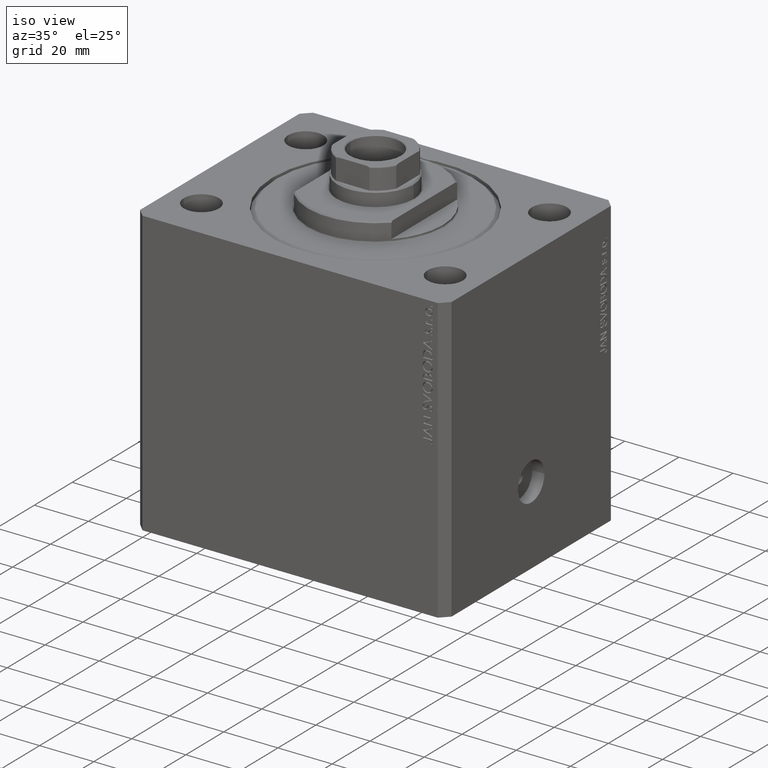
[diagram: clean part render]
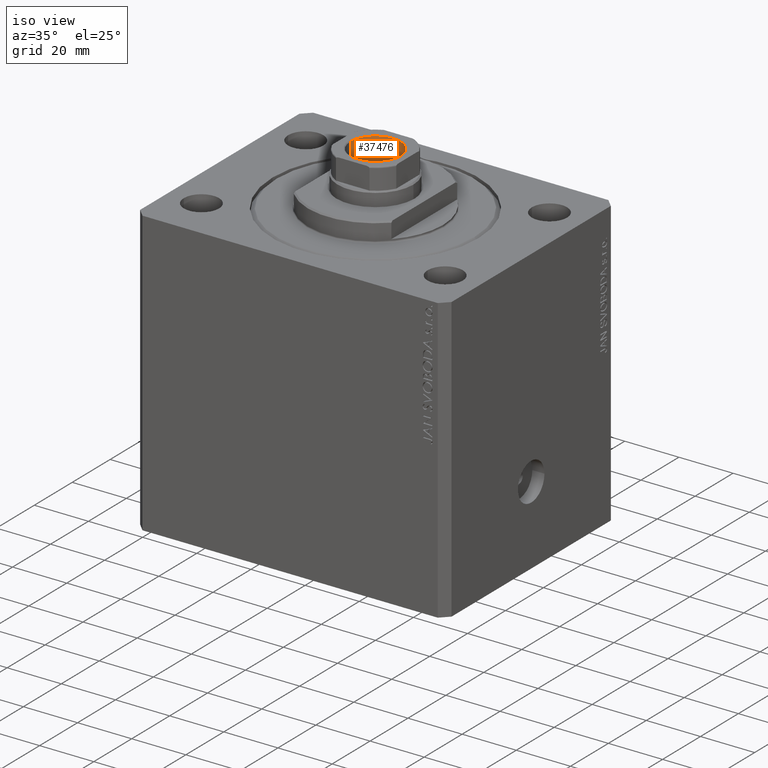
[diagram: same view with one face highlighted and labeled with its STEP entity id]
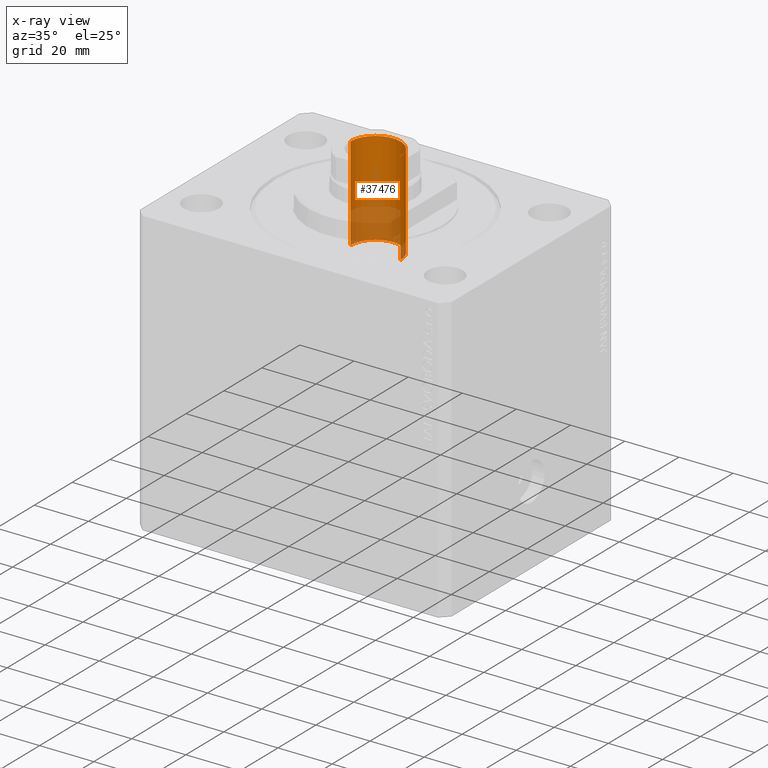
[diagram: x-ray of the same camera — body ghosted, the highlighted face saturated]
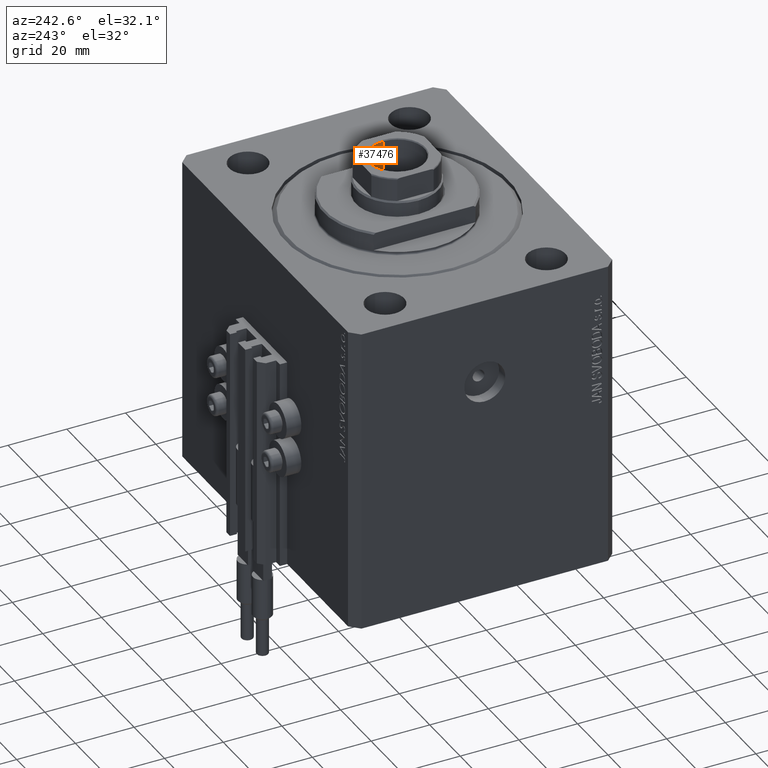
[diagram: same view with one face highlighted and labeled with its STEP entity id]
A machine part, iso view. The second image highlights one B-rep face of the part: STEP entity #37476.
The next image is the same camera in x-ray: the body ghosted, the highlighted face saturated — about 39% of this face is hidden behind the body in this view.
A second angle (auxiliary view) of the same face is appended — the face is thin or edge-on in the first view.
In plain terms, the highlighted cylindrical surface (edge-blend (fillet) strip) has radius 9.25 mm, axis along (0, 0, 1).
Its self-contained STEP definition (entity closure, byte-faithful):
#55 = EDGE_CURVE ( 'NONE', #9397, #2701, #21224, .T. ) ;
#1508 = CARTESIAN_POINT ( 'NONE',  ( 9.249999999999996447, 0.000000000000000000, 107.0999999999999943 ) ) ;
#2701 = VERTEX_POINT ( 'NONE', #37820 ) ;
#3931 = DIRECTION ( 'NONE',  ( -0.000000000000000000, -0.000000000000000000, 1.000000000000000000 ) ) ;
#5291 = EDGE_CURVE ( 'NONE', #23696, #46547, #26342, .T. ) ;
#8735 = DIRECTION ( 'NONE',  ( -0.000000000000000000, -0.000000000000000000, 1.000000000000000000 ) ) ;
#8789 = CIRCLE ( 'NONE', #21266, 9.249999999999994671 ) ;
#8871 = CARTESIAN_POINT ( 'NONE',  ( -9.249999999999996447, 1.132798289211301304E-15, 106.7999999999999972 ) ) ;
#9397 = VERTEX_POINT ( 'NONE', #16391 ) ;
#9439 = DIRECTION ( 'NONE',  ( 1.000000000000000000, 0.000000000000000000, 0.000000000000000000 ) ) ;
#12876 = FACE_OUTER_BOUND ( 'NONE', #31095, .T. ) ;
#13112 = CYLINDRICAL_SURFACE ( 'NONE', #23558, 9.249999999999996447 ) ;
#13458 = AXIS2_PLACEMENT_3D ( 'NONE', #28638, #40319, #14232 ) ;
#14232 = DIRECTION ( 'NONE',  ( 1.000000000000000000, 0.000000000000000000, 0.000000000000000000 ) ) ;
#15154 = EDGE_CURVE ( 'NONE', #2701, #46547, #44601, .T. ) ;
#15580 = EDGE_CURVE ( 'NONE', #9397, #23696, #8789, .T. ) ;
#16391 = CARTESIAN_POINT ( 'NONE',  ( 9.249999999999994671, 0.000000000000000000, 72.09999999999999432 ) ) ;
#16842 = DIRECTION ( 'NONE',  ( -0.000000000000000000, -0.000000000000000000, 1.000000000000000000 ) ) ;
#17100 = ORIENTED_EDGE ( 'NONE', *, *, #5291, .F. ) ;
#17306 = ORIENTED_EDGE ( 'NONE', *, *, #55, .T. ) ;
#17775 = VECTOR ( 'NONE', #16842, 1000.000000000000000 ) ;
#19505 = CARTESIAN_POINT ( 'NONE',  ( -9.249999999999996447, 1.132798289211301304E-15, 107.0999999999999943 ) ) ;
#21224 = LINE ( 'NONE', #1508, #17775 ) ;
#21266 = AXIS2_PLACEMENT_3D ( 'NONE', #34389, #3931, #41225 ) ;
#22484 = ORIENTED_EDGE ( 'NONE', *, *, #15580, .F. ) ;
#23558 = AXIS2_PLACEMENT_3D ( 'NONE', #24085, #8735, #9439 ) ;
#23696 = VERTEX_POINT ( 'NONE', #25626 ) ;
#24085 = CARTESIAN_POINT ( 'NONE',  ( 0.000000000000000000, 0.000000000000000000, 107.0999999999999943 ) ) ;
#25626 = CARTESIAN_POINT ( 'NONE',  ( -9.249999999999994671, 1.132798289211300909E-15, 72.09999999999999432 ) ) ;
#26342 = LINE ( 'NONE', #19505, #30394 ) ;
#28638 = CARTESIAN_POINT ( 'NONE',  ( 0.000000000000000000, 0.000000000000000000, 106.7999999999999972 ) ) ;
#30394 = VECTOR ( 'NONE', #41216, 1000.000000000000000 ) ;
#31095 = EDGE_LOOP ( 'NONE', ( #17100, #22484, #17306, #36381 ) ) ;
#34389 = CARTESIAN_POINT ( 'NONE',  ( 0.000000000000000000, 0.000000000000000000, 72.09999999999999432 ) ) ;
#36381 = ORIENTED_EDGE ( 'NONE', *, *, #15154, .T. ) ;
#37476 = ADVANCED_FACE ( 'NONE', ( #12876 ), #13112, .F. ) ;
#37820 = CARTESIAN_POINT ( 'NONE',  ( 9.249999999999996447, 0.000000000000000000, 106.7999999999999972 ) ) ;
#40319 = DIRECTION ( 'NONE',  ( 0.000000000000000000, 0.000000000000000000, 1.000000000000000000 ) ) ;
#41216 = DIRECTION ( 'NONE',  ( -0.000000000000000000, -0.000000000000000000, 1.000000000000000000 ) ) ;
#41225 = DIRECTION ( 'NONE',  ( 1.000000000000000000, 0.000000000000000000, 0.000000000000000000 ) ) ;
#44601 = CIRCLE ( 'NONE', #13458, 9.249999999999996447 ) ;
#46547 = VERTEX_POINT ( 'NONE', #8871 ) ;